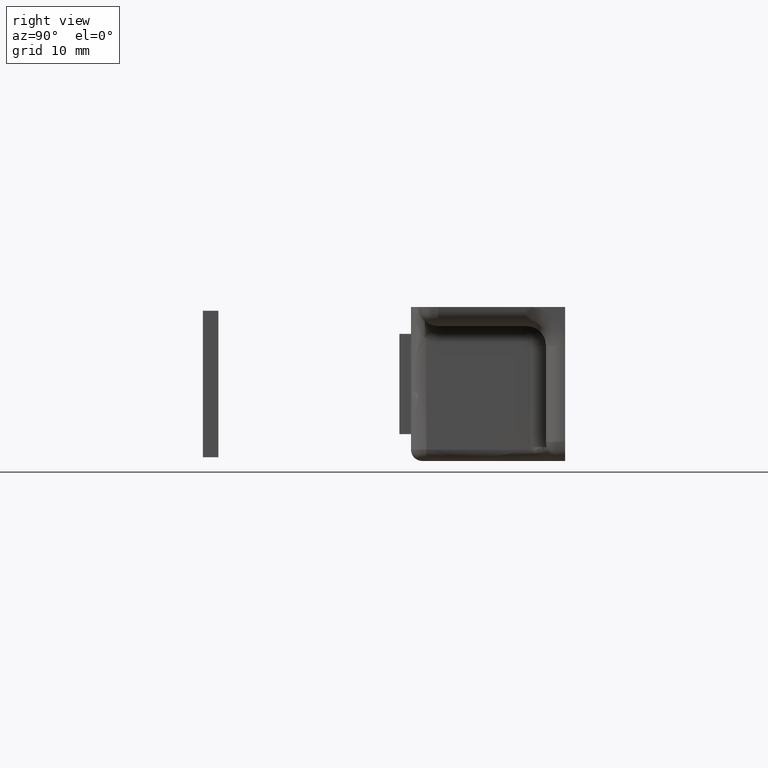
[diagram: clean part render]
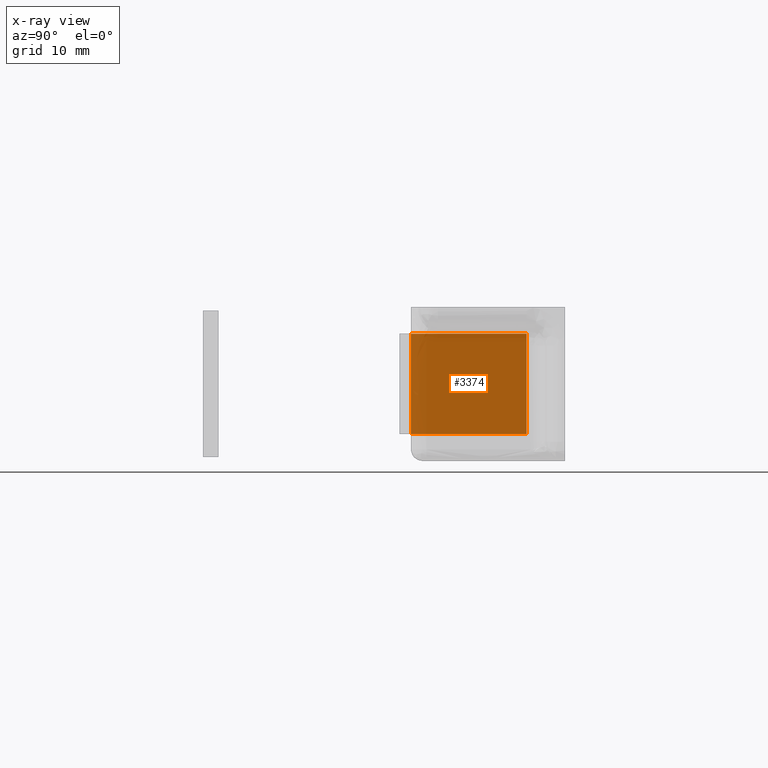
[diagram: x-ray — body ghosted, one internal face saturated and labeled with its STEP entity id]
A machine part, right view, then the same camera in x-ray: the body is ghosted and one INTERNAL B-rep face — a face not visible from any outside direction — is saturated and labeled: STEP entity #3374.
In plain terms, the highlighted face is a freeform B-spline surface patch.
Its self-contained STEP definition (entity closure, byte-faithful):
#3303=CARTESIAN_POINT('',(-23.449999999999999,-5.0,-6.500000000107490));
#3304=VERTEX_POINT('',#3303);
#3310=CARTESIAN_POINT('',(-23.449999999999999,-5.0,6.500000000008189));
#3311=VERTEX_POINT('',#3310);
#3312=CARTESIAN_POINT('',(-23.449999999999999,-5.0,6.500000000008189));
#3313=CARTESIAN_POINT('',(-23.449999999999999,-5.0,-6.500000000107490));
#3314=QUASI_UNIFORM_CURVE('',1,(#3312,#3313),.UNSPECIFIED.,.F.,.U.);
#3315=EDGE_CURVE('',#3311,#3304,#3314,.T.);
#3330=CARTESIAN_POINT('',(-23.449999999999999,-20.0,-6.500000000107490));
#3331=VERTEX_POINT('',#3330);
#3339=CARTESIAN_POINT('',(-23.449999999999999,-5.0,-6.500000000107490));
#3340=CARTESIAN_POINT('',(-23.449999999999999,-20.0,-6.500000000107490));
#3341=QUASI_UNIFORM_CURVE('',1,(#3339,#3340),.UNSPECIFIED.,.F.,.U.);
#3342=EDGE_CURVE('',#3304,#3331,#3341,.T.);
#3353=CARTESIAN_POINT('',(-23.449999999999999,-20.749249970927089,-7.149349974916747));
#3354=CARTESIAN_POINT('',(-23.449999999999999,-20.749249970927089,7.149350323504617));
#3355=CARTESIAN_POINT('',(-23.449999999999999,-4.250749626741560,-7.149349974916747));
#3356=CARTESIAN_POINT('',(-23.449999999999999,-4.250749626741560,7.149350323504617));
#3357=B_SPLINE_SURFACE_WITH_KNOTS('',1,1,((#3353,#3355),(#3354,#3356)),.UNSPECIFIED.,.F.,.F.,.U.,(2,2),(2,2),(0.0,14.298700298421361),(0.0,16.498500344185530),.UNSPECIFIED.);
#3358=CARTESIAN_POINT('',(-23.449999999999999,-20.0,6.500000000008189));
#3359=VERTEX_POINT('',#3358);
#3360=CARTESIAN_POINT('',(-23.449999999999999,-20.0,6.500000000008189));
#3361=CARTESIAN_POINT('',(-23.449999999999999,-20.0,-6.500000000107490));
#3362=QUASI_UNIFORM_CURVE('',1,(#3360,#3361),.UNSPECIFIED.,.F.,.U.);
#3363=EDGE_CURVE('',#3359,#3331,#3362,.T.);
#3364=ORIENTED_EDGE('',*,*,#3363,.F.);
#3365=CARTESIAN_POINT('',(-23.449999999999999,-5.0,6.500000000008189));
#3366=CARTESIAN_POINT('',(-23.449999999999999,-20.0,6.500000000008189));
#3367=QUASI_UNIFORM_CURVE('',1,(#3365,#3366),.UNSPECIFIED.,.F.,.U.);
#3368=EDGE_CURVE('',#3311,#3359,#3367,.T.);
#3369=ORIENTED_EDGE('',*,*,#3368,.F.);
#3370=ORIENTED_EDGE('',*,*,#3315,.T.);
#3371=ORIENTED_EDGE('',*,*,#3342,.T.);
#3372=EDGE_LOOP('',(#3364,#3369,#3370,#3371));
#3373=FACE_OUTER_BOUND('',#3372,.T.);
#3374=ADVANCED_FACE('',(#3373),#3357,.T.);